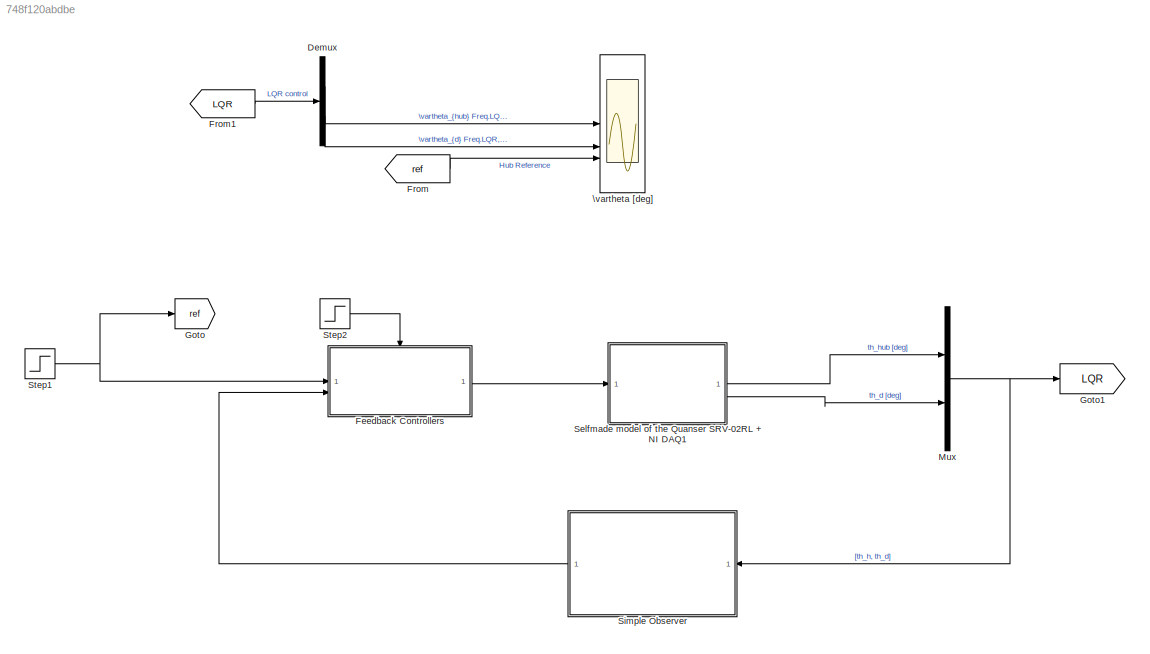
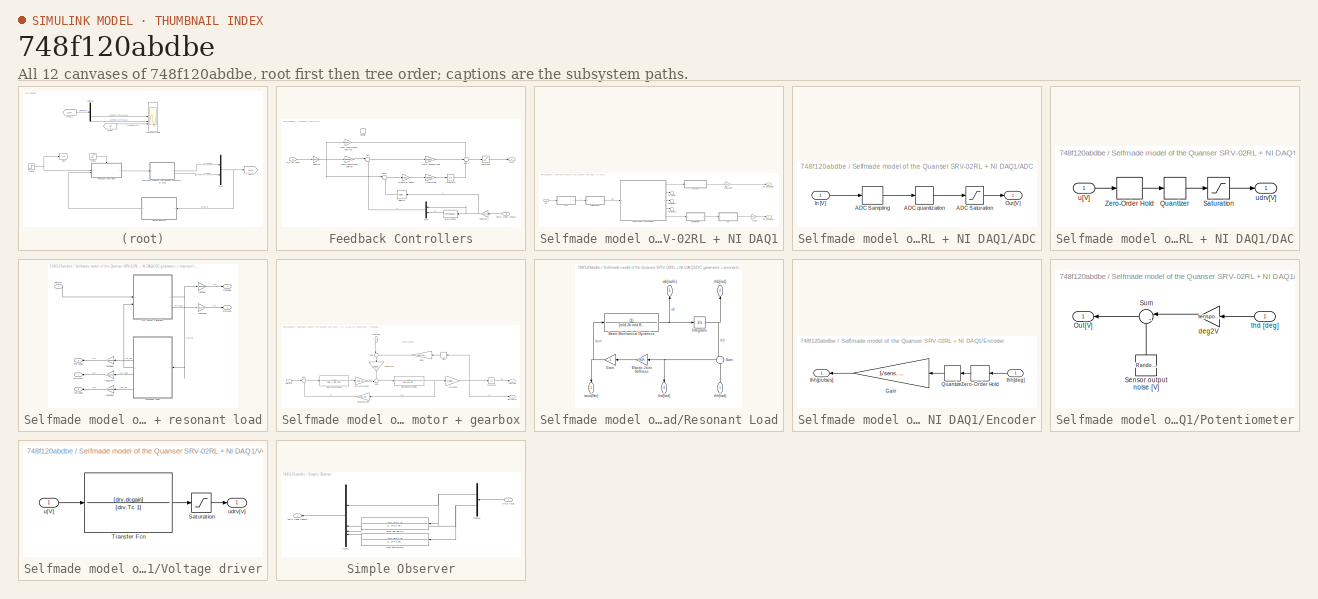
[diagram: thumbnail index - all 12 canvases of the model, root first then tree order]
MODEL slx_748f120abdbe
KIND model
CONFIG AbsTol = auto
CONFIG EnableMultiTasking = off
CONFIG FixedStep = auto
CONFIG MaxStep = auto
CONFIG MinStep = auto
CONFIG RelTol = 1e-3
CONFIG SampleTimeConstraint = Unconstrained
CONFIG SolverName = ode45
CONFIG StartTime = 0.0
CONFIG StopTime = sIn.simulation_time
BLOCK [Demux] Demux
  Outputs = 2
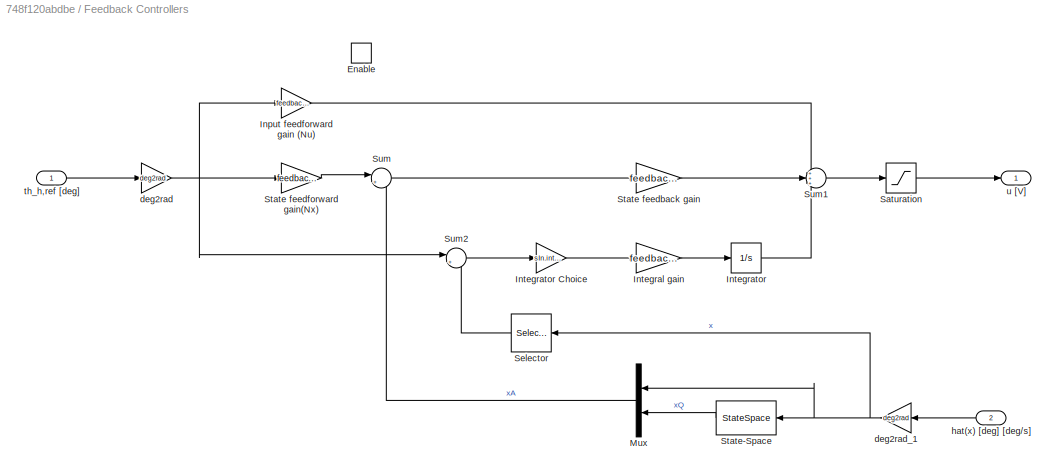
BLOCK [SubSystem] Feedback Controllers
BLOCK [EnablePort] Feedback Controllers/Enable
BLOCK [Gain] Feedback Controllers/Input feedforward gain (Nu)
  Gain = feedback.Nu
BLOCK [Gain] Feedback Controllers/Integral gain
  Gain = feedback.robustKi
  Multiplication = Matrix(K*u)
BLOCK [Integrator] Feedback Controllers/Integrator
BLOCK [Gain] Feedback Controllers/Integrator Choice
  Gain = sIn.intOn
BLOCK [Mux] Feedback Controllers/Mux
  DisplayOption = bar
  Inputs = 2
BLOCK [Saturate] Feedback Controllers/Saturation
  LowerLimit = -10
  UpperLimit = 10
BLOCK [Selector] Feedback Controllers/Selector
  IndexOptions = Index vector (dialog)
  Indices = 1
  InputPortWidth = 4
  OutputSizes = 1
BLOCK [Gain] Feedback Controllers/State feedback gain
  Gain = feedback.K
  Multiplication = Matrix(K*u)
BLOCK [Gain] Feedback Controllers/State feedforward gain(Nx)
  Gain = feedback.Nx
BLOCK [StateSpace] Feedback Controllers/State-Space
  A = LQR.AQ
  B = LQR.BQ
  C = eye(2,2)
  D = zeros(2,4)
  InitialCondition = 0
BLOCK [Sum] Feedback Controllers/Sum
  Inputs = |+-
BLOCK [Sum] Feedback Controllers/Sum1
  Inputs = +++
BLOCK [Sum] Feedback Controllers/Sum2
  Inputs = |+-
BLOCK [Gain] Feedback Controllers/deg2rad
  Gain = deg2rad
BLOCK [Gain] Feedback Controllers/deg2rad_1
  Gain = deg2rad
BLOCK [Inport] Feedback Controllers/hat(x) [deg] [deg//s]
  Port = 2
BLOCK [Inport] Feedback Controllers/th_h,ref [deg]
BLOCK [Outport] Feedback Controllers/u [V]
BLOCK [From] From
  GotoTag = ref
BLOCK [From] From1
  GotoTag = LQR
BLOCK [Goto] Goto
  GotoTag = ref
BLOCK [Goto] Goto1
  GotoTag = LQR
BLOCK [Mux] Mux
  DisplayOption = bar
  Inputs = 2
BLOCK [SubSystem] Selfmade model of the Quanser SRV-02RL + NI DAQ1
BLOCK [SubSystem] Selfmade model of the Quanser SRV-02RL + NI DAQ1/ADC
  NameLocation = top
BLOCK [ZeroOrderHold] Selfmade model of the Quanser SRV-02RL + NI DAQ1/ADC/ADC Sampling
  SampleTime = daq.adc.Ts
BLOCK [Saturate] Selfmade model of the Quanser SRV-02RL + NI DAQ1/ADC/ADC Saturation
  LowerLimit = -2.5
  UpperLimit = 2.5
BLOCK [Quantizer] Selfmade model of the Quanser SRV-02RL + NI DAQ1/ADC/ADC quantization
  QuantizationInterval = daq.adc.q
BLOCK [Inport] Selfmade model of the Quanser SRV-02RL + NI DAQ1/ADC/In [V]
BLOCK [Outport] Selfmade model of the Quanser SRV-02RL + NI DAQ1/ADC/Out [V]
BLOCK [SubSystem] Selfmade model of the Quanser SRV-02RL + NI DAQ1/DAC
BLOCK [Quantizer] Selfmade model of the Quanser SRV-02RL + NI DAQ1/DAC/Quantizer
  QuantizationInterval = daq.dac.q
BLOCK [Saturate] Selfmade model of the Quanser SRV-02RL + NI DAQ1/DAC/Saturation
  LowerLimit = -10
  UpperLimit = 10
BLOCK [ZeroOrderHold] Selfmade model of the Quanser SRV-02RL + NI DAQ1/DAC/Zero-Order Hold
  SampleTime = 1e-3
BLOCK [Inport] Selfmade model of the Quanser SRV-02RL + NI DAQ1/DAC/u[V]
BLOCK [Outport] Selfmade model of the Quanser SRV-02RL + NI DAQ1/DAC/udrv[V]
BLOCK [SubSystem] Selfmade model of the Quanser SRV-02RL + NI DAQ1/DC gearmotor + resonant load
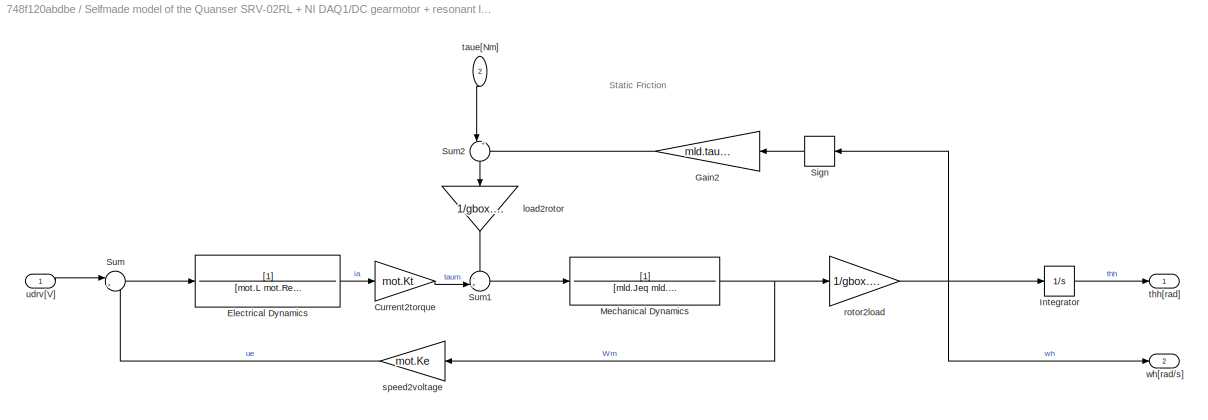
BLOCK [SubSystem] Selfmade model of the Quanser SRV-02RL + NI DAQ1/DC gearmotor + resonant load/DC motor + gearbox
BLOCK [Gain] Selfmade model of the Quanser SRV-02RL + NI DAQ1/DC gearmotor + resonant load/DC motor + gearbox/Current2torque
  Gain = mot.Kt
BLOCK [TransferFcn] Selfmade model of the Quanser SRV-02RL + NI DAQ1/DC gearmotor + resonant load/DC motor + gearbox/Electrical Dynamics
  Denominator = [mot.L mot.Req]
BLOCK [Gain] Selfmade model of the Quanser SRV-02RL + NI DAQ1/DC gearmotor + resonant load/DC motor + gearbox/Gain2
  Gain = mld.tausf
  NameLocation = top
BLOCK [Integrator] Selfmade model of the Quanser SRV-02RL + NI DAQ1/DC gearmotor + resonant load/DC motor + gearbox/Integrator
BLOCK [TransferFcn] Selfmade model of the Quanser SRV-02RL + NI DAQ1/DC gearmotor + resonant load/DC motor + gearbox/Mechanical Dynamics
  Denominator = [mld.Jeq mld.Beq]
BLOCK [Signum] Selfmade model of the Quanser SRV-02RL + NI DAQ1/DC gearmotor + resonant load/DC motor + gearbox/Sign
  NameLocation = top
  ZeroCross = off
BLOCK [Sum] Selfmade model of the Quanser SRV-02RL + NI DAQ1/DC gearmotor + resonant load/DC motor + gearbox/Sum
  Inputs = |+-
BLOCK [Sum] Selfmade model of the Quanser SRV-02RL + NI DAQ1/DC gearmotor + resonant load/DC motor + gearbox/Sum1
  Inputs = -+|
BLOCK [Sum] Selfmade model of the Quanser SRV-02RL + NI DAQ1/DC gearmotor + resonant load/DC motor + gearbox/Sum2
  Inputs = |++
  NameLocation = left
BLOCK [Gain] Selfmade model of the Quanser SRV-02RL + NI DAQ1/DC gearmotor + resonant load/DC motor + gearbox/load2rotor
  Gain = 1/gbox.N1
  NameLocation = left
BLOCK [Gain] Selfmade model of the Quanser SRV-02RL + NI DAQ1/DC gearmotor + resonant load/DC motor + gearbox/rotor2load
  Gain = 1/gbox.N1
BLOCK [Gain] Selfmade model of the Quanser SRV-02RL + NI DAQ1/DC gearmotor + resonant load/DC motor + gearbox/speed2voltage
  Gain = mot.Ke
BLOCK [Inport] Selfmade model of the Quanser SRV-02RL + NI DAQ1/DC gearmotor + resonant load/DC motor + gearbox/taue[Nm]
  NameLocation = left
  Port = 2
BLOCK [Outport] Selfmade model of the Quanser SRV-02RL + NI DAQ1/DC gearmotor + resonant load/DC motor + gearbox/thh[rad]
BLOCK [Inport] Selfmade model of the Quanser SRV-02RL + NI DAQ1/DC gearmotor + resonant load/DC motor + gearbox/udrv[V]
BLOCK [Outport] Selfmade model of the Quanser SRV-02RL + NI DAQ1/DC gearmotor + resonant load/DC motor + gearbox/wh[rad//s]
  Port = 2
BLOCK [SubSystem] Selfmade model of the Quanser SRV-02RL + NI DAQ1/DC gearmotor + resonant load/Resonant Load
BLOCK [TransferFcn] Selfmade model of the Quanser SRV-02RL + NI DAQ1/DC gearmotor + resonant load/Resonant Load/Beam Mechanical Dynamics
  Denominator = [mld.Jb mld.Bb]
BLOCK [Gain] Selfmade model of the Quanser SRV-02RL + NI DAQ1/DC gearmotor + resonant load/Resonant Load/Elastic Joint Stiffness
  Gain = mld.k
BLOCK [Gain] Selfmade model of the Quanser SRV-02RL + NI DAQ1/DC gearmotor + resonant load/Resonant Load/Gain
  Gain = -1
  NameLocation = top
BLOCK [Integrator] Selfmade model of the Quanser SRV-02RL + NI DAQ1/DC gearmotor + resonant load/Resonant Load/Integrator
BLOCK [Sum] Selfmade model of the Quanser SRV-02RL + NI DAQ1/DC gearmotor + resonant load/Resonant Load/Sum
  Inputs = +|-
  NameLocation = top
BLOCK [Outport] Selfmade model of the Quanser SRV-02RL + NI DAQ1/DC gearmotor + resonant load/Resonant Load/taue[Nm]
  NameLocation = left
BLOCK [Outport] Selfmade model of the Quanser SRV-02RL + NI DAQ1/DC gearmotor + resonant load/Resonant Load/thb[rad]
  NameLocation = right
  Port = 2
BLOCK [Outport] Selfmade model of the Quanser SRV-02RL + NI DAQ1/DC gearmotor + resonant load/Resonant Load/thd[rad]
  NameLocation = left
  Port = 4
BLOCK [Inport] Selfmade model of the Quanser SRV-02RL + NI DAQ1/DC gearmotor + resonant load/Resonant Load/thh[rad]
  NameLocation = right
BLOCK [Outport] Selfmade model of the Quanser SRV-02RL + NI DAQ1/DC gearmotor + resonant load/Resonant Load/wb[rad//s]
  NameLocation = right
  Port = 3
BLOCK [Gain] Selfmade model of the Quanser SRV-02RL + NI DAQ1/DC gearmotor + resonant load/rad2deg
  Gain = rad2deg
BLOCK [Gain] Selfmade model of the Quanser SRV-02RL + NI DAQ1/DC gearmotor + resonant load/rad2deg1
  Gain = rad2deg
BLOCK [Gain] Selfmade model of the Quanser SRV-02RL + NI DAQ1/DC gearmotor + resonant load/rad2deg2
  Gain = rad2deg
BLOCK [Gain] Selfmade model of the Quanser SRV-02RL + NI DAQ1/DC gearmotor + resonant load/rads2rpm
  Gain = rads2rpm
BLOCK [Gain] Selfmade model of the Quanser SRV-02RL + NI DAQ1/DC gearmotor + resonant load/rads2rpm1
  Gain = rads2rpm
BLOCK [Outport] Selfmade model of the Quanser SRV-02RL + NI DAQ1/DC gearmotor + resonant load/thb [deg]
  Port = 3
BLOCK [Outport] Selfmade model of the Quanser SRV-02RL + NI DAQ1/DC gearmotor + resonant load/thd [deg]
  Port = 5
BLOCK [Outport] Selfmade model of the Quanser SRV-02RL + NI DAQ1/DC gearmotor + resonant load/thh[deg]
BLOCK [Inport] Selfmade model of the Quanser SRV-02RL + NI DAQ1/DC gearmotor + resonant load/udrv[V]
BLOCK [Outport] Selfmade model of the Quanser SRV-02RL + NI DAQ1/DC gearmotor + resonant load/wb [rpm]
  Port = 4
BLOCK [Outport] Selfmade model of the Quanser SRV-02RL + NI DAQ1/DC gearmotor + resonant load/wh[rpm]
  Port = 2
BLOCK [SubSystem] Selfmade model of the Quanser SRV-02RL + NI DAQ1/Encoder
  NameLocation = top
BLOCK [Gain] Selfmade model of the Quanser SRV-02RL + NI DAQ1/Encoder/Gain
  Gain = 1/sens.enc.pulse2deg
  NameLocation = top
BLOCK [Quantizer] Selfmade model of the Quanser SRV-02RL + NI DAQ1/Encoder/Quantizer
  NameLocation = top
  QuantizationInterval = sens.enc.pulse2deg
BLOCK [ZeroOrderHold] Selfmade model of the Quanser SRV-02RL + NI DAQ1/Encoder/Zero-Order Hold
  NameLocation = top
  SampleTime = 1e-3
BLOCK [Inport] Selfmade model of the Quanser SRV-02RL + NI DAQ1/Encoder/thh[deg]
  NameLocation = top
BLOCK [Outport] Selfmade model of the Quanser SRV-02RL + NI DAQ1/Encoder/thh[pulses]
  NameLocation = top
BLOCK [SubSystem] Selfmade model of the Quanser SRV-02RL + NI DAQ1/Potentiometer
  NameLocation = top
BLOCK [Outport] Selfmade model of the Quanser SRV-02RL + NI DAQ1/Potentiometer/Out[V]
  NameLocation = top
BLOCK [RandomNumber] Selfmade model of the Quanser SRV-02RL + NI DAQ1/Potentiometer/Sensor output noise [V]
  NameLocation = right
  SampleTime = daq.adc.Ts
  Variance = sens.pot2.noise.var
BLOCK [Sum] Selfmade model of the Quanser SRV-02RL + NI DAQ1/Potentiometer/Sum
  Inputs = |++
  NameLocation = top
BLOCK [Gain] Selfmade model of the Quanser SRV-02RL + NI DAQ1/Potentiometer/deg2V
  Gain = sens.pot2.deg2V
BLOCK [Inport] Selfmade model of the Quanser SRV-02RL + NI DAQ1/Potentiometer/thd [deg]
  NameLocation = top
BLOCK [Terminator] Selfmade model of the Quanser SRV-02RL + NI DAQ1/Terminator
BLOCK [Terminator] Selfmade model of the Quanser SRV-02RL + NI DAQ1/Terminator1
BLOCK [Terminator] Selfmade model of the Quanser SRV-02RL + NI DAQ1/Terminator2
BLOCK [Gain] Selfmade model of the Quanser SRV-02RL + NI DAQ1/V2deg
  Gain = sens.pot2.V2deg
  NameLocation = top
BLOCK [SubSystem] Selfmade model of the Quanser SRV-02RL + NI DAQ1/Voltage driver
BLOCK [Saturate] Selfmade model of the Quanser SRV-02RL + NI DAQ1/Voltage driver/Saturation
  LowerLimit = -12
  UpperLimit = 12
BLOCK [TransferFcn] Selfmade model of the Quanser SRV-02RL + NI DAQ1/Voltage driver/Transfer Fcn
  Denominator = [drv.Tc 1]
  Numerator = [drv.dcgain]
BLOCK [Inport] Selfmade model of the Quanser SRV-02RL + NI DAQ1/Voltage driver/u[V]
BLOCK [Outport] Selfmade model of the Quanser SRV-02RL + NI DAQ1/Voltage driver/udrv[v]
BLOCK [Gain] Selfmade model of the Quanser SRV-02RL + NI DAQ1/pulse2deg
  Gain = sens.enc.pulse2deg
  NameLocation = top
BLOCK [Outport] Selfmade model of the Quanser SRV-02RL + NI DAQ1/thd_meas [deg]
  Port = 2
BLOCK [Outport] Selfmade model of the Quanser SRV-02RL + NI DAQ1/thh_meas [deg]
BLOCK [Inport] Selfmade model of the Quanser SRV-02RL + NI DAQ1/u[V]
BLOCK [SubSystem] Simple Observer
BLOCK [Demux] Simple Observer/Demux
  Outputs = 2
BLOCK [Mux] Simple Observer/Mux1
  DisplayOption = bar
BLOCK [TransferFcn] Simple Observer/Real derivative
  Denominator = [1, 2*filt.del*filt.wc, filt.wc^2]
  Numerator = [filt.wc^2, 0]
BLOCK [TransferFcn] Simple Observer/Real derivative1
  Denominator = [1, 2*filt.del*filt.wc, filt.wc^2]
  Numerator = [filt.wc^2, 0]
BLOCK [Inport] Simple Observer/[th_h, th_d]
BLOCK [Outport] Simple Observer/hat(x) [deg] [deg//s]
BLOCK [Step] Step1
  After = sIn.position
  SampleTime = 0
  Time = sIn.t1
BLOCK [Step] Step2
  SampleTime = 0
  Time = sIn.t1
BLOCK [Scope] \vartheta [deg]
  Floating = off
  NumInputPorts = 3
  ScopeSpecificationString = Simulink.scopes.TimeScopeBlockCfg('CurrentConfiguration', extmgr.ConfigurationSet(extmgr.Configuration('Core','General UI',true),extmgr.Configuration('Core','Source UI',true),extmgr.Configuration('Sources','WiredSimulink',true,'DataLogging',true,'DataLoggingSaveFormat','StructureWithTime','DataLoggingVariableName','nominal_100'),extmgr.Configuration('Visuals','Time Domain',true,'SerializedDisplays...<+1855ch>
ANNOTATION Selfmade model of the Quanser SRV-02RL + NI DAQ1/DC gearmotor + resonant load/DC motor + gearbox: Static Friction
LINE Demux:1 -> \vartheta [deg]:1
LINE Demux:2 -> \vartheta [deg]:2
LINE Feedback Controllers/Input feedforward gain (Nu):1 -> Feedback Controllers/Sum1:1
LINE Feedback Controllers/Integral gain:1 -> Feedback Controllers/Integrator:1
LINE Feedback Controllers/Integrator Choice:1 -> Feedback Controllers/Integral gain:1
LINE Feedback Controllers/Integrator:1 -> Feedback Controllers/Sum1:3
LINE Feedback Controllers/Mux:1 -> Feedback Controllers/Sum:2
LINE Feedback Controllers/Saturation:1 -> Feedback Controllers/u [V]:1
LINE Feedback Controllers/Selector:1 -> Feedback Controllers/Sum2:2
LINE Feedback Controllers/State feedback gain:1 -> Feedback Controllers/Sum1:2
LINE Feedback Controllers/State feedforward gain(Nx):1 -> Feedback Controllers/Sum:1
LINE Feedback Controllers/State-Space:1 -> Feedback Controllers/Mux:2
LINE Feedback Controllers/Sum1:1 -> Feedback Controllers/Saturation:1
LINE Feedback Controllers/Sum2:1 -> Feedback Controllers/Integrator Choice:1
LINE Feedback Controllers/Sum:1 -> Feedback Controllers/State feedback gain:1
NET Feedback Controllers/deg2rad:1 -> Feedback Controllers/Input feedforward gain (Nu):1, Feedback Controllers/State feedforward gain(Nx):1, Feedback Controllers/Sum2:1
NET Feedback Controllers/deg2rad_1:1 -> Feedback Controllers/Mux:1, Feedback Controllers/Selector:1, Feedback Controllers/State-Space:1
LINE Feedback Controllers/hat(x) [deg] [deg//s]:1 -> Feedback Controllers/deg2rad_1:1
LINE Feedback Controllers/th_h,ref [deg]:1 -> Feedback Controllers/deg2rad:1
LINE Feedback Controllers:1 -> Selfmade model of the Quanser SRV-02RL + NI DAQ1:1
LINE From1:1 -> Demux:1
LINE From:1 -> \vartheta [deg]:3
NET Mux:1 -> Goto1:1, Simple Observer:1
LINE Selfmade model of the Quanser SRV-02RL + NI DAQ1/ADC/ADC Sampling:1 -> Selfmade model of the Quanser SRV-02RL + NI DAQ1/ADC/ADC quantization:1
LINE Selfmade model of the Quanser SRV-02RL + NI DAQ1/ADC/ADC Saturation:1 -> Selfmade model of the Quanser SRV-02RL + NI DAQ1/ADC/Out [V]:1
LINE Selfmade model of the Quanser SRV-02RL + NI DAQ1/ADC/ADC quantization:1 -> Selfmade model of the Quanser SRV-02RL + NI DAQ1/ADC/ADC Saturation:1
LINE Selfmade model of the Quanser SRV-02RL + NI DAQ1/ADC/In [V]:1 -> Selfmade model of the Quanser SRV-02RL + NI DAQ1/ADC/ADC Sampling:1
LINE Selfmade model of the Quanser SRV-02RL + NI DAQ1/ADC:1 -> Selfmade model of the Quanser SRV-02RL + NI DAQ1/V2deg:1
LINE Selfmade model of the Quanser SRV-02RL + NI DAQ1/DAC/Quantizer:1 -> Selfmade model of the Quanser SRV-02RL + NI DAQ1/DAC/Saturation:1
LINE Selfmade model of the Quanser SRV-02RL + NI DAQ1/DAC/Saturation:1 -> Selfmade model of the Quanser SRV-02RL + NI DAQ1/DAC/udrv[V]:1
LINE Selfmade model of the Quanser SRV-02RL + NI DAQ1/DAC/Zero-Order Hold:1 -> Selfmade model of the Quanser SRV-02RL + NI DAQ1/DAC/Quantizer:1
LINE Selfmade model of the Quanser SRV-02RL + NI DAQ1/DAC/u[V]:1 -> Selfmade model of the Quanser SRV-02RL + NI DAQ1/DAC/Zero-Order Hold:1
LINE Selfmade model of the Quanser SRV-02RL + NI DAQ1/DAC:1 -> Selfmade model of the Quanser SRV-02RL + NI DAQ1/Voltage driver:1
LINE Selfmade model of the Quanser SRV-02RL + NI DAQ1/DC gearmotor + resonant load/DC motor + gearbox/Current2torque:1 -> Selfmade model of the Quanser SRV-02RL + NI DAQ1/DC gearmotor + resonant load/DC motor + gearbox/Sum1:2
LINE Selfmade model of the Quanser SRV-02RL + NI DAQ1/DC gearmotor + resonant load/DC motor + gearbox/Electrical Dynamics:1 -> Selfmade model of the Quanser SRV-02RL + NI DAQ1/DC gearmotor + resonant load/DC motor + gearbox/Current2torque:1
LINE Selfmade model of the Quanser SRV-02RL + NI DAQ1/DC gearmotor + resonant load/DC motor + gearbox/Gain2:1 -> Selfmade model of the Quanser SRV-02RL + NI DAQ1/DC gearmotor + resonant load/DC motor + gearbox/Sum2:2
LINE Selfmade model of the Quanser SRV-02RL + NI DAQ1/DC gearmotor + resonant load/DC motor + gearbox/Integrator:1 -> Selfmade model of the Quanser SRV-02RL + NI DAQ1/DC gearmotor + resonant load/DC motor + gearbox/thh[rad]:1
NET Selfmade model of the Quanser SRV-02RL + NI DAQ1/DC gearmotor + resonant load/DC motor + gearbox/Mechanical Dynamics:1 -> Selfmade model of the Quanser SRV-02RL + NI DAQ1/DC gearmotor + resonant load/DC motor + gearbox/rotor2load:1, Selfmade model of the Quanser SRV-02RL + NI DAQ1/DC gearmotor + resonant load/DC motor + gearbox/speed2voltage:1
LINE Selfmade model of the Quanser SRV-02RL + NI DAQ1/DC gearmotor + resonant load/DC motor + gearbox/Sign:1 -> Selfmade model of the Quanser SRV-02RL + NI DAQ1/DC gearmotor + resonant load/DC motor + gearbox/Gain2:1
LINE Selfmade model of the Quanser SRV-02RL + NI DAQ1/DC gearmotor + resonant load/DC motor + gearbox/Sum1:1 -> Selfmade model of the Quanser SRV-02RL + NI DAQ1/DC gearmotor + resonant load/DC motor + gearbox/Mechanical Dynamics:1
LINE Selfmade model of the Quanser SRV-02RL + NI DAQ1/DC gearmotor + resonant load/DC motor + gearbox/Sum2:1 -> Selfmade model of the Quanser SRV-02RL + NI DAQ1/DC gearmotor + resonant load/DC motor + gearbox/load2rotor:1
LINE Selfmade model of the Quanser SRV-02RL + NI DAQ1/DC gearmotor + resonant load/DC motor + gearbox/Sum:1 -> Selfmade model of the Quanser SRV-02RL + NI DAQ1/DC gearmotor + resonant load/DC motor + gearbox/Electrical Dynamics:1
LINE Selfmade model of the Quanser SRV-02RL + NI DAQ1/DC gearmotor + resonant load/DC motor + gearbox/load2rotor:1 -> Selfmade model of the Quanser SRV-02RL + NI DAQ1/DC gearmotor + resonant load/DC motor + gearbox/Sum1:1
NET Selfmade model of the Quanser SRV-02RL + NI DAQ1/DC gearmotor + resonant load/DC motor + gearbox/rotor2load:1 -> Selfmade model of the Quanser SRV-02RL + NI DAQ1/DC gearmotor + resonant load/DC motor + gearbox/Integrator:1, Selfmade model of the Quanser SRV-02RL + NI DAQ1/DC gearmotor + resonant load/DC motor + gearbox/Sign:1, Selfmade model of the Quanser SRV-02RL + NI DAQ1/DC gearmotor + resonant load/DC motor + gearbox/wh[rad//s]:1
LINE Selfmade model of the Quanser SRV-02RL + NI DAQ1/DC gearmotor + resonant load/DC motor + gearbox/speed2voltage:1 -> Selfmade model of the Quanser SRV-02RL + NI DAQ1/DC gearmotor + resonant load/DC motor + gearbox/Sum:2
LINE Selfmade model of the Quanser SRV-02RL + NI DAQ1/DC gearmotor + resonant load/DC motor + gearbox/taue[Nm]:1 -> Selfmade model of the Quanser SRV-02RL + NI DAQ1/DC gearmotor + resonant load/DC motor + gearbox/Sum2:1
LINE Selfmade model of the Quanser SRV-02RL + NI DAQ1/DC gearmotor + resonant load/DC motor + gearbox/udrv[V]:1 -> Selfmade model of the Quanser SRV-02RL + NI DAQ1/DC gearmotor + resonant load/DC motor + gearbox/Sum:1
NET Selfmade model of the Quanser SRV-02RL + NI DAQ1/DC gearmotor + resonant load/DC motor + gearbox:1 -> Selfmade model of the Quanser SRV-02RL + NI DAQ1/DC gearmotor + resonant load/Resonant Load:1, Selfmade model of the Quanser SRV-02RL + NI DAQ1/DC gearmotor + resonant load/rad2deg:1
LINE Selfmade model of the Quanser SRV-02RL + NI DAQ1/DC gearmotor + resonant load/DC motor + gearbox:2 -> Selfmade model of the Quanser SRV-02RL + NI DAQ1/DC gearmotor + resonant load/rads2rpm:1
NET Selfmade model of the Quanser SRV-02RL + NI DAQ1/DC gearmotor + resonant load/Resonant Load/Beam Mechanical Dynamics:1 -> Selfmade model of the Quanser SRV-02RL + NI DAQ1/DC gearmotor + resonant load/Resonant Load/Integrator:1, Selfmade model of the Quanser SRV-02RL + NI DAQ1/DC gearmotor + resonant load/Resonant Load/wb[rad//s]:1
LINE Selfmade model of the Quanser SRV-02RL + NI DAQ1/DC gearmotor + resonant load/Resonant Load/Elastic Joint Stiffness:1 -> Selfmade model of the Quanser SRV-02RL + NI DAQ1/DC gearmotor + resonant load/Resonant Load/Gain:1
NET Selfmade model of the Quanser SRV-02RL + NI DAQ1/DC gearmotor + resonant load/Resonant Load/Gain:1 -> Selfmade model of the Quanser SRV-02RL + NI DAQ1/DC gearmotor + resonant load/Resonant Load/Beam Mechanical Dynamics:1, Selfmade model of the Quanser SRV-02RL + NI DAQ1/DC gearmotor + resonant load/Resonant Load/taue[Nm]:1
NET Selfmade model of the Quanser SRV-02RL + NI DAQ1/DC gearmotor + resonant load/Resonant Load/Integrator:1 -> Selfmade model of the Quanser SRV-02RL + NI DAQ1/DC gearmotor + resonant load/Resonant Load/Sum:1, Selfmade model of the Quanser SRV-02RL + NI DAQ1/DC gearmotor + resonant load/Resonant Load/thb[rad]:1
NET Selfmade model of the Quanser SRV-02RL + NI DAQ1/DC gearmotor + resonant load/Resonant Load/Sum:1 -> Selfmade model of the Quanser SRV-02RL + NI DAQ1/DC gearmotor + resonant load/Resonant Load/Elastic Joint Stiffness:1, Selfmade model of the Quanser SRV-02RL + NI DAQ1/DC gearmotor + resonant load/Resonant Load/thd[rad]:1
LINE Selfmade model of the Quanser SRV-02RL + NI DAQ1/DC gearmotor + resonant load/Resonant Load/thh[rad]:1 -> Selfmade model of the Quanser SRV-02RL + NI DAQ1/DC gearmotor + resonant load/Resonant Load/Sum:2
LINE Selfmade model of the Quanser SRV-02RL + NI DAQ1/DC gearmotor + resonant load/Resonant Load:1 -> Selfmade model of the Quanser SRV-02RL + NI DAQ1/DC gearmotor + resonant load/DC motor + gearbox:2
LINE Selfmade model of the Quanser SRV-02RL + NI DAQ1/DC gearmotor + resonant load/Resonant Load:2 -> Selfmade model of the Quanser SRV-02RL + NI DAQ1/DC gearmotor + resonant load/rad2deg1:1
LINE Selfmade model of the Quanser SRV-02RL + NI DAQ1/DC gearmotor + resonant load/Resonant Load:3 -> Selfmade model of the Quanser SRV-02RL + NI DAQ1/DC gearmotor + resonant load/rads2rpm1:1
LINE Selfmade model of the Quanser SRV-02RL + NI DAQ1/DC gearmotor + resonant load/Resonant Load:4 -> Selfmade model of the Quanser SRV-02RL + NI DAQ1/DC gearmotor + resonant load/rad2deg2:1
LINE Selfmade model of the Quanser SRV-02RL + NI DAQ1/DC gearmotor + resonant load/rad2deg1:1 -> Selfmade model of the Quanser SRV-02RL + NI DAQ1/DC gearmotor + resonant load/thb [deg]:1
LINE Selfmade model of the Quanser SRV-02RL + NI DAQ1/DC gearmotor + resonant load/rad2deg2:1 -> Selfmade model of the Quanser SRV-02RL + NI DAQ1/DC gearmotor + resonant load/thd [deg]:1
LINE Selfmade model of the Quanser SRV-02RL + NI DAQ1/DC gearmotor + resonant load/rad2deg:1 -> Selfmade model of the Quanser SRV-02RL + NI DAQ1/DC gearmotor + resonant load/thh[deg]:1
LINE Selfmade model of the Quanser SRV-02RL + NI DAQ1/DC gearmotor + resonant load/rads2rpm1:1 -> Selfmade model of the Quanser SRV-02RL + NI DAQ1/DC gearmotor + resonant load/wb [rpm]:1
LINE Selfmade model of the Quanser SRV-02RL + NI DAQ1/DC gearmotor + resonant load/rads2rpm:1 -> Selfmade model of the Quanser SRV-02RL + NI DAQ1/DC gearmotor + resonant load/wh[rpm]:1
LINE Selfmade model of the Quanser SRV-02RL + NI DAQ1/DC gearmotor + resonant load/udrv[V]:1 -> Selfmade model of the Quanser SRV-02RL + NI DAQ1/DC gearmotor + resonant load/DC motor + gearbox:1
LINE Selfmade model of the Quanser SRV-02RL + NI DAQ1/DC gearmotor + resonant load:1 -> Selfmade model of the Quanser SRV-02RL + NI DAQ1/Encoder:1
LINE Selfmade model of the Quanser SRV-02RL + NI DAQ1/DC gearmotor + resonant load:2 -> Selfmade model of the Quanser SRV-02RL + NI DAQ1/Terminator:1
LINE Selfmade model of the Quanser SRV-02RL + NI DAQ1/DC gearmotor + resonant load:3 -> Selfmade model of the Quanser SRV-02RL + NI DAQ1/Terminator1:1
LINE Selfmade model of the Quanser SRV-02RL + NI DAQ1/DC gearmotor + resonant load:4 -> Selfmade model of the Quanser SRV-02RL + NI DAQ1/Terminator2:1
LINE Selfmade model of the Quanser SRV-02RL + NI DAQ1/DC gearmotor + resonant load:5 -> Selfmade model of the Quanser SRV-02RL + NI DAQ1/Potentiometer:1
LINE Selfmade model of the Quanser SRV-02RL + NI DAQ1/Encoder/Gain:1 -> Selfmade model of the Quanser SRV-02RL + NI DAQ1/Encoder/thh[pulses]:1
LINE Selfmade model of the Quanser SRV-02RL + NI DAQ1/Encoder/Quantizer:1 -> Selfmade model of the Quanser SRV-02RL + NI DAQ1/Encoder/Gain:1
LINE Selfmade model of the Quanser SRV-02RL + NI DAQ1/Encoder/Zero-Order Hold:1 -> Selfmade model of the Quanser SRV-02RL + NI DAQ1/Encoder/Quantizer:1
LINE Selfmade model of the Quanser SRV-02RL + NI DAQ1/Encoder/thh[deg]:1 -> Selfmade model of the Quanser SRV-02RL + NI DAQ1/Encoder/Zero-Order Hold:1
LINE Selfmade model of the Quanser SRV-02RL + NI DAQ1/Encoder:1 -> Selfmade model of the Quanser SRV-02RL + NI DAQ1/pulse2deg:1
LINE Selfmade model of the Quanser SRV-02RL + NI DAQ1/Potentiometer/Sensor output noise [V]:1 -> Selfmade model of the Quanser SRV-02RL + NI DAQ1/Potentiometer/Sum:2
LINE Selfmade model of the Quanser SRV-02RL + NI DAQ1/Potentiometer/Sum:1 -> Selfmade model of the Quanser SRV-02RL + NI DAQ1/Potentiometer/Out[V]:1
LINE Selfmade model of the Quanser SRV-02RL + NI DAQ1/Potentiometer/deg2V:1 -> Selfmade model of the Quanser SRV-02RL + NI DAQ1/Potentiometer/Sum:1
LINE Selfmade model of the Quanser SRV-02RL + NI DAQ1/Potentiometer/thd [deg]:1 -> Selfmade model of the Quanser SRV-02RL + NI DAQ1/Potentiometer/deg2V:1
LINE Selfmade model of the Quanser SRV-02RL + NI DAQ1/Potentiometer:1 -> Selfmade model of the Quanser SRV-02RL + NI DAQ1/ADC:1
LINE Selfmade model of the Quanser SRV-02RL + NI DAQ1/V2deg:1 -> Selfmade model of the Quanser SRV-02RL + NI DAQ1/thd_meas [deg]:1
LINE Selfmade model of the Quanser SRV-02RL + NI DAQ1/Voltage driver/Saturation:1 -> Selfmade model of the Quanser SRV-02RL + NI DAQ1/Voltage driver/udrv[v]:1
LINE Selfmade model of the Quanser SRV-02RL + NI DAQ1/Voltage driver/Transfer Fcn:1 -> Selfmade model of the Quanser SRV-02RL + NI DAQ1/Voltage driver/Saturation:1
LINE Selfmade model of the Quanser SRV-02RL + NI DAQ1/Voltage driver/u[V]:1 -> Selfmade model of the Quanser SRV-02RL + NI DAQ1/Voltage driver/Transfer Fcn:1
LINE Selfmade model of the Quanser SRV-02RL + NI DAQ1/Voltage driver:1 -> Selfmade model of the Quanser SRV-02RL + NI DAQ1/DC gearmotor + resonant load:1
LINE Selfmade model of the Quanser SRV-02RL + NI DAQ1/pulse2deg:1 -> Selfmade model of the Quanser SRV-02RL + NI DAQ1/thh_meas [deg]:1
LINE Selfmade model of the Quanser SRV-02RL + NI DAQ1/u[V]:1 -> Selfmade model of the Quanser SRV-02RL + NI DAQ1/DAC:1
LINE Selfmade model of the Quanser SRV-02RL + NI DAQ1:1 -> Mux:1
LINE Selfmade model of the Quanser SRV-02RL + NI DAQ1:2 -> Mux:2
NET Simple Observer/Demux:1 -> Simple Observer/Mux1:1, Simple Observer/Real derivative:1
NET Simple Observer/Demux:2 -> Simple Observer/Mux1:2, Simple Observer/Real derivative1:1
LINE Simple Observer/Mux1:1 -> Simple Observer/hat(x) [deg] [deg//s]:1
LINE Simple Observer/Real derivative1:1 -> Simple Observer/Mux1:4
LINE Simple Observer/Real derivative:1 -> Simple Observer/Mux1:3
LINE Simple Observer/[th_h, th_d]:1 -> Simple Observer/Demux:1
LINE Simple Observer:1 -> Feedback Controllers:2
NET Step1:1 -> Feedback Controllers:1, Goto:1
LINE Step2:1 -> Feedback Controllers:enable
note: NET lines group one-source signal fan-out (src -> all destinations, sorted); 1:1 wires keep LINE
